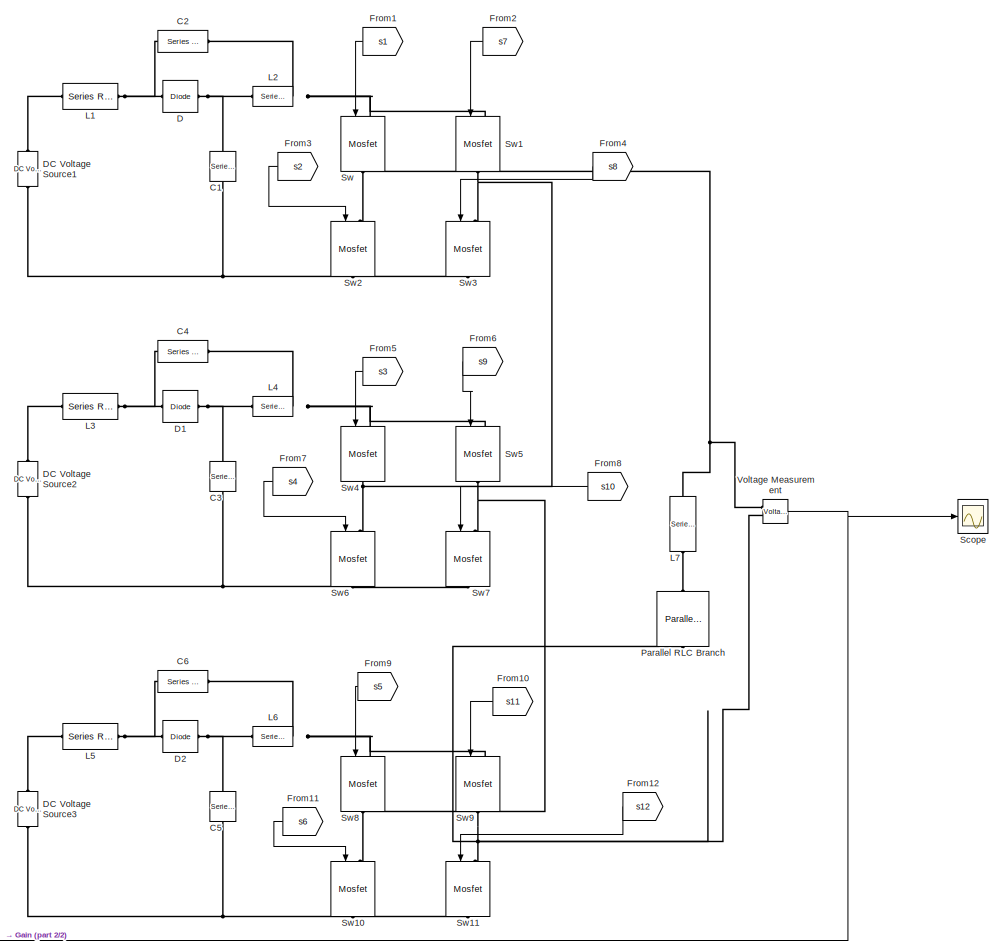
[diagram: root canvas - part 1/2, right side, full height]
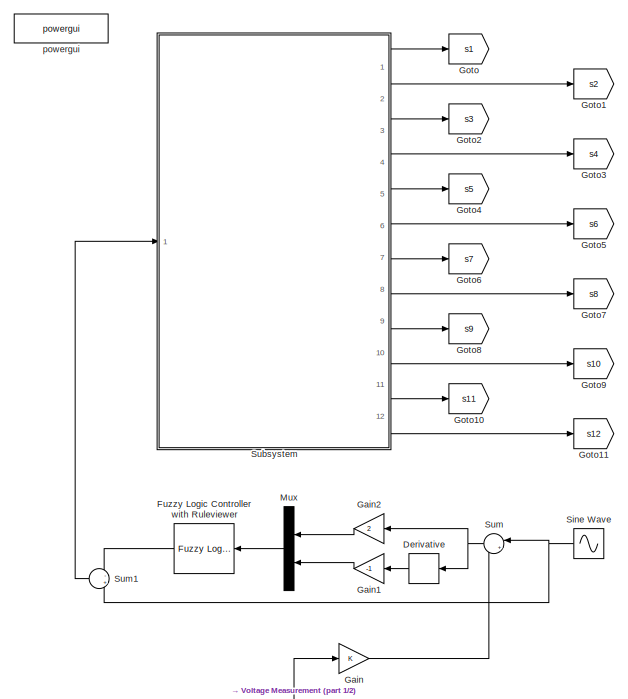
[diagram: root canvas - part 2/2, middle left region]
MODEL slx_8dec98ebf4b0
KIND model
CONFIG AbsTol = auto
CONFIG EnableMultiTasking = on
CONFIG FixedStep = auto
CONFIG MaxStep = 5e-6
CONFIG MinStep = auto
CONFIG RelTol = 1e-3
CONFIG SampleTimeConstraint = Unconstrained
CONFIG Solver = ode23tb
CONFIG SolverName = ode23tb
CONFIG StartTime = 0.0
CONFIG StopTime = .04
BLOCK [Reference] C1  REF=powerlib/Elements/Series RLC Branch
  Ports = [0, 0, 0, 0, 0, 1, 1]
  SourceBlock = powerlib/Elements/Series RLC Branch
  SourceProductBaseCode = PS
  SourceProductName = Simscape Power Systems
  SourceType = Series RLC Branch
BLOCK [Reference] C2  REF=powerlib/Elements/Series RLC Branch
  Ports = [0, 0, 0, 0, 0, 1, 1]
  SourceBlock = powerlib/Elements/Series RLC Branch
  SourceProductBaseCode = PS
  SourceProductName = Simscape Power Systems
  SourceType = Series RLC Branch
BLOCK [Reference] C3  REF=powerlib/Elements/Series RLC Branch
  Ports = [0, 0, 0, 0, 0, 1, 1]
  SourceBlock = powerlib/Elements/Series RLC Branch
  SourceProductBaseCode = PS
  SourceProductName = Simscape Power Systems
  SourceType = Series RLC Branch
BLOCK [Reference] C4  REF=powerlib/Elements/Series RLC Branch
  Ports = [0, 0, 0, 0, 0, 1, 1]
  SourceBlock = powerlib/Elements/Series RLC Branch
  SourceProductBaseCode = PS
  SourceProductName = Simscape Power Systems
  SourceType = Series RLC Branch
BLOCK [Reference] C5  REF=powerlib/Elements/Series RLC Branch
  Ports = [0, 0, 0, 0, 0, 1, 1]
  SourceBlock = powerlib/Elements/Series RLC Branch
  SourceProductBaseCode = PS
  SourceProductName = Simscape Power Systems
  SourceType = Series RLC Branch
BLOCK [Reference] C6  REF=powerlib/Elements/Series RLC Branch
  Ports = [0, 0, 0, 0, 0, 1, 1]
  SourceBlock = powerlib/Elements/Series RLC Branch
  SourceProductBaseCode = PS
  SourceProductName = Simscape Power Systems
  SourceType = Series RLC Branch
BLOCK [Reference] D  REF=powerlib/Power
Electronics/Diode
  Ports = [0, 0, 0, 0, 0, 1, 1]
  SourceBlock = powerlib/Power\nElectronics/Diode
  SourceProductBaseCode = PS
  SourceProductName = Simscape Power Systems
  SourceType = Diode
BLOCK [Reference] D1  REF=powerlib/Power
Electronics/Diode
  Ports = [0, 0, 0, 0, 0, 1, 1]
  SourceBlock = powerlib/Power\nElectronics/Diode
  SourceProductBaseCode = PS
  SourceProductName = Simscape Power Systems
  SourceType = Diode
BLOCK [Reference] D2  REF=powerlib/Power
Electronics/Diode
  Ports = [0, 0, 0, 0, 0, 1, 1]
  SourceBlock = powerlib/Power\nElectronics/Diode
  SourceProductBaseCode = PS
  SourceProductName = Simscape Power Systems
  SourceType = Diode
BLOCK [Reference] DC Voltage Source1  REF=powerlib/Electrical
Sources/DC Voltage Source
  Ports = [0, 0, 0, 0, 0, 1, 1]
  SourceBlock = powerlib/Electrical\nSources/DC Voltage Source
  SourceProductBaseCode = PS
  SourceProductName = Simscape Power Systems
  SourceType = DC Voltage Source
BLOCK [Reference] DC Voltage Source2  REF=powerlib/Electrical
Sources/DC Voltage Source
  Ports = [0, 0, 0, 0, 0, 1, 1]
  SourceBlock = powerlib/Electrical\nSources/DC Voltage Source
  SourceProductBaseCode = PS
  SourceProductName = Simscape Power Systems
  SourceType = DC Voltage Source
BLOCK [Reference] DC Voltage Source3  REF=powerlib/Electrical
Sources/DC Voltage Source
  Ports = [0, 0, 0, 0, 0, 1, 1]
  SourceBlock = powerlib/Electrical\nSources/DC Voltage Source
  SourceProductBaseCode = PS
  SourceProductName = Simscape Power Systems
  SourceType = DC Voltage Source
BLOCK [Derivative] Derivative
BLOCK [From] From1
  GotoTag = s1
BLOCK [From] From10
  GotoTag = s11
BLOCK [From] From11
  GotoTag = s6
BLOCK [From] From12
  GotoTag = s12
BLOCK [From] From2
  GotoTag = s7
BLOCK [From] From3
  GotoTag = s2
BLOCK [From] From4
  GotoTag = s8
BLOCK [From] From5
  GotoTag = s3
BLOCK [From] From6
  GotoTag = s9
BLOCK [From] From7
  GotoTag = s4
BLOCK [From] From8
  GotoTag = s10
BLOCK [From] From9
  GotoTag = s5
BLOCK [Reference] Fuzzy Logic Controller with Ruleviewer  REF=fuzblock/Fuzzy Logic   (lib defined in mdl_858b3b3e7478)
Controller 
with Ruleviewer
  Ports = [1, 1]
  SourceBlock = fuzblock/Fuzzy Logic \nController \nwith Ruleviewer
  SourceProductBaseCode = FL
  SourceProductName = Fuzzy Logic Toolbox
  SourceType = FIS
BLOCK [Gain] Gain
  OutDataTypeStr = Inherit: Inherit via internal rule
  ParamDataTypeStr = Inherit: Inherit via internal rule
  SaturateOnIntegerOverflow = off
BLOCK [Gain] Gain1
  Gain = -1
  OutDataTypeStr = Inherit: Inherit via internal rule
  ParamDataTypeStr = Inherit: Inherit via internal rule
  SaturateOnIntegerOverflow = off
BLOCK [Gain] Gain2
  Gain = 2
  OutDataTypeStr = Inherit: Inherit via internal rule
  ParamDataTypeStr = Inherit: Inherit via internal rule
  SaturateOnIntegerOverflow = off
BLOCK [Goto] Goto
  GotoTag = s1
BLOCK [Goto] Goto1
  GotoTag = s2
BLOCK [Goto] Goto10
  GotoTag = s11
BLOCK [Goto] Goto11
  GotoTag = s12
BLOCK [Goto] Goto2
  GotoTag = s3
BLOCK [Goto] Goto3
  GotoTag = s4
BLOCK [Goto] Goto4
  GotoTag = s5
BLOCK [Goto] Goto5
  GotoTag = s6
BLOCK [Goto] Goto6
  GotoTag = s7
BLOCK [Goto] Goto7
  GotoTag = s8
BLOCK [Goto] Goto8
  GotoTag = s9
BLOCK [Goto] Goto9
  GotoTag = s10
BLOCK [Reference] L1  REF=powerlib/Elements/Series RLC Branch
  Ports = [0, 0, 0, 0, 0, 1, 1]
  SourceBlock = powerlib/Elements/Series RLC Branch
  SourceProductBaseCode = PS
  SourceProductName = Simscape Power Systems
  SourceType = Series RLC Branch
BLOCK [Reference] L2  REF=powerlib/Elements/Series RLC Branch
  Ports = [0, 0, 0, 0, 0, 1, 1]
  SourceBlock = powerlib/Elements/Series RLC Branch
  SourceProductBaseCode = PS
  SourceProductName = Simscape Power Systems
  SourceType = Series RLC Branch
BLOCK [Reference] L3  REF=powerlib/Elements/Series RLC Branch
  Ports = [0, 0, 0, 0, 0, 1, 1]
  SourceBlock = powerlib/Elements/Series RLC Branch
  SourceProductBaseCode = PS
  SourceProductName = Simscape Power Systems
  SourceType = Series RLC Branch
BLOCK [Reference] L4  REF=powerlib/Elements/Series RLC Branch
  Ports = [0, 0, 0, 0, 0, 1, 1]
  SourceBlock = powerlib/Elements/Series RLC Branch
  SourceProductBaseCode = PS
  SourceProductName = Simscape Power Systems
  SourceType = Series RLC Branch
BLOCK [Reference] L5  REF=powerlib/Elements/Series RLC Branch
  Ports = [0, 0, 0, 0, 0, 1, 1]
  SourceBlock = powerlib/Elements/Series RLC Branch
  SourceProductBaseCode = PS
  SourceProductName = Simscape Power Systems
  SourceType = Series RLC Branch
BLOCK [Reference] L6  REF=powerlib/Elements/Series RLC Branch
  Ports = [0, 0, 0, 0, 0, 1, 1]
  SourceBlock = powerlib/Elements/Series RLC Branch
  SourceProductBaseCode = PS
  SourceProductName = Simscape Power Systems
  SourceType = Series RLC Branch
BLOCK [Reference] L7  REF=powerlib/Elements/Series RLC Branch
  Ports = [0, 0, 0, 0, 0, 1, 1]
  SourceBlock = powerlib/Elements/Series RLC Branch
  SourceProductBaseCode = PS
  SourceProductName = Simscape Power Systems
  SourceType = Series RLC Branch
BLOCK [Mux] Mux
  DisplayOption = bar
  Inputs = 2
  Ports = [2, 1]
BLOCK [Reference] Parallel RLC Branch  REF=powerlib/Elements/Parallel RLC Branch
  AttributesFormatString = \n
  Ports = [0, 0, 0, 0, 0, 1, 1]
  SourceBlock = powerlib/Elements/Parallel RLC Branch
  SourceProductBaseCode = PS
  SourceProductName = Simscape Power Systems
  SourceType = Parallel RLC Branch
BLOCK [Scope] Scope
  NumInputPorts = 1
  Ports = [1]
  ScopeSpecificationString = Simulink.scopes.TimeScopeBlockCfg('CurrentConfiguration', extmgr.ConfigurationSet(extmgr.Configuration('Core','General UI',true),extmgr.Configuration('Core','Source UI',true),extmgr.Configuration('Sources','WiredSimulink',true,'DataLoggingDecimation','1','DataLogging',true,'DataLoggingVariableName','fuzzyoutput'),extmgr.Configuration('Visuals','Time Domain',true,'SerializedDisplays',{struct('MinYL...<+1729ch>
BLOCK [Sin] Sine Wave
  Amplitude = 3
  Bias = .5
  Frequency = 2*pi*50
  Ports = [0, 1]
  SampleTime = 0
  VectorParams1D = off
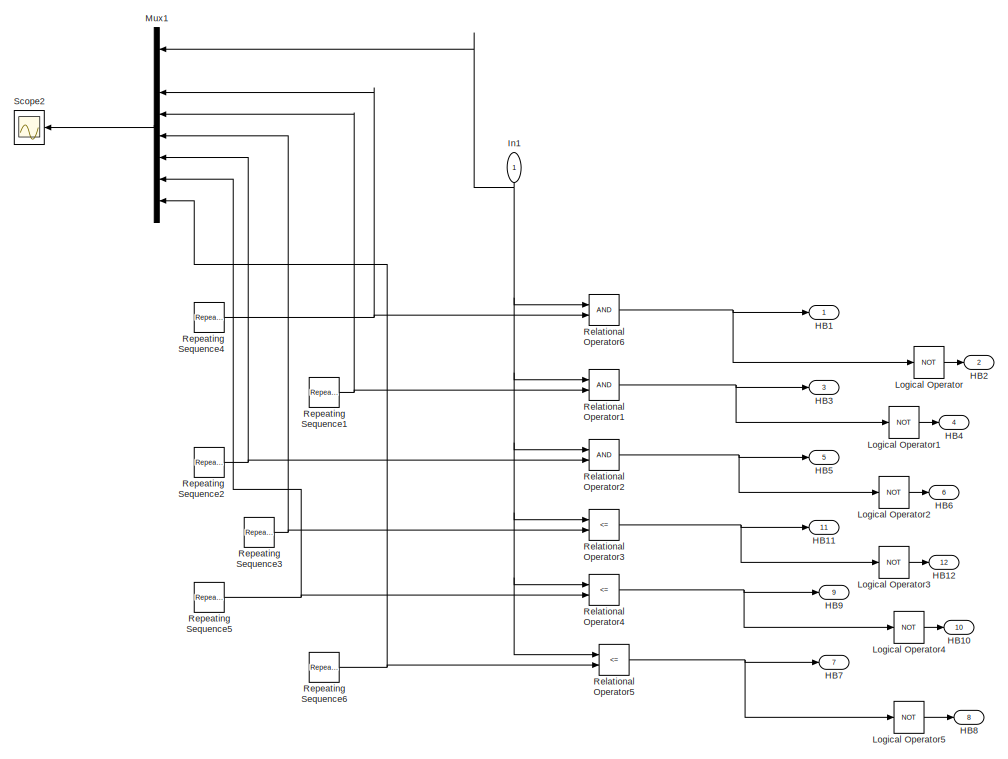
[diagram: Subsystem - part 1/2, left side, full height]
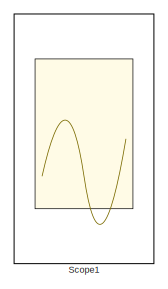
[diagram: Subsystem - part 2/2, top right region]
BLOCK [SubSystem] Subsystem
  Ports = [1, 12]
  RequestExecContextInheritance = off
  Variant = off
BLOCK [Outport] Subsystem/HB1
  IconDisplay = Port number
BLOCK [Outport] Subsystem/HB10
  IconDisplay = Port number
  Port = 10
BLOCK [Outport] Subsystem/HB11
  IconDisplay = Port number
  Port = 11
BLOCK [Outport] Subsystem/HB12
  IconDisplay = Port number
  Port = 12
BLOCK [Outport] Subsystem/HB2
  IconDisplay = Port number
  Port = 2
BLOCK [Outport] Subsystem/HB3
  IconDisplay = Port number
  Port = 3
BLOCK [Outport] Subsystem/HB4
  IconDisplay = Port number
  Port = 4
BLOCK [Outport] Subsystem/HB5
  IconDisplay = Port number
  Port = 5
BLOCK [Outport] Subsystem/HB6
  IconDisplay = Port number
  Port = 6
BLOCK [Outport] Subsystem/HB7
  IconDisplay = Port number
  Port = 7
BLOCK [Outport] Subsystem/HB8
  IconDisplay = Port number
  Port = 8
BLOCK [Outport] Subsystem/HB9
  IconDisplay = Port number
  Port = 9
BLOCK [Inport] Subsystem/In1
  IconDisplay = Port number
BLOCK [Logic] Subsystem/Logical Operator
  AllPortsSameDT = off
  Operator = NOT
  OutDataTypeStr = boolean
  Ports = [1, 1]
BLOCK [Logic] Subsystem/Logical Operator1
  AllPortsSameDT = off
  Operator = NOT
  OutDataTypeStr = boolean
  Ports = [1, 1]
BLOCK [Logic] Subsystem/Logical Operator2
  AllPortsSameDT = off
  Operator = NOT
  OutDataTypeStr = boolean
  Ports = [1, 1]
BLOCK [Logic] Subsystem/Logical Operator3
  AllPortsSameDT = off
  Operator = NOT
  OutDataTypeStr = boolean
  Ports = [1, 1]
BLOCK [Logic] Subsystem/Logical Operator4
  AllPortsSameDT = off
  Operator = NOT
  OutDataTypeStr = boolean
  Ports = [1, 1]
BLOCK [Logic] Subsystem/Logical Operator5
  AllPortsSameDT = off
  Operator = NOT
  OutDataTypeStr = boolean
  Ports = [1, 1]
BLOCK [Mux] Subsystem/Mux1
  DisplayOption = bar
  Inputs = 8
  Ports = [8, 1]
BLOCK [RelationalOperator] Subsystem/Relational Operator1
  InputSameDT = off
  OutDataTypeStr = boolean
  Ports = [2, 1]
BLOCK [RelationalOperator] Subsystem/Relational Operator2
  InputSameDT = off
  OutDataTypeStr = boolean
  Ports = [2, 1]
BLOCK [RelationalOperator] Subsystem/Relational Operator3
  InputSameDT = off
  Operator = <=
  OutDataTypeStr = boolean
  Ports = [2, 1]
BLOCK [RelationalOperator] Subsystem/Relational Operator4
  InputSameDT = off
  Operator = <=
  OutDataTypeStr = boolean
  Ports = [2, 1]
BLOCK [RelationalOperator] Subsystem/Relational Operator5
  InputSameDT = off
  Operator = <=
  OutDataTypeStr = boolean
  Ports = [2, 1]
BLOCK [RelationalOperator] Subsystem/Relational Operator6
  InputSameDT = off
  OutDataTypeStr = boolean
  Ports = [2, 1]
BLOCK [Reference] Subsystem/Repeating Sequence1  REF=simulink/Sources/Repeating
Sequence
  Ports = [0, 1]
  SourceBlock = simulink/Sources/Repeating\nSequence
  SourceProductBaseCode = SL
  SourceProductName = Simulink
  SourceType = Repeating table
BLOCK [Reference] Subsystem/Repeating Sequence2  REF=simulink/Sources/Repeating
Sequence
  Ports = [0, 1]
  SourceBlock = simulink/Sources/Repeating\nSequence
  SourceProductBaseCode = SL
  SourceProductName = Simulink
  SourceType = Repeating table
BLOCK [Reference] Subsystem/Repeating Sequence3  REF=simulink/Sources/Repeating
Sequence
  Ports = [0, 1]
  SourceBlock = simulink/Sources/Repeating\nSequence
  SourceProductBaseCode = SL
  SourceProductName = Simulink
  SourceType = Repeating table
BLOCK [Reference] Subsystem/Repeating Sequence4  REF=simulink/Sources/Repeating
Sequence
  Ports = [0, 1]
  SourceBlock = simulink/Sources/Repeating\nSequence
  SourceProductBaseCode = SL
  SourceProductName = Simulink
  SourceType = Repeating table
BLOCK [Reference] Subsystem/Repeating Sequence5  REF=simulink/Sources/Repeating
Sequence
  Ports = [0, 1]
  SourceBlock = simulink/Sources/Repeating\nSequence
  SourceProductBaseCode = SL
  SourceProductName = Simulink
  SourceType = Repeating table
BLOCK [Reference] Subsystem/Repeating Sequence6  REF=simulink/Sources/Repeating
Sequence
  Ports = [0, 1]
  SourceBlock = simulink/Sources/Repeating\nSequence
  SourceProductBaseCode = SL
  SourceProductName = Simulink
  SourceType = Repeating table
BLOCK [Scope] Subsystem/Scope1
  NumInputPorts = 7
  Ports = [7]
  ScopeSpecificationString = Simulink.scopes.TimeScopeBlockCfg('CurrentConfiguration', extmgr.ConfigurationSet(extmgr.Configuration('Core','General UI',true,'DisplayFullSourceName',true),extmgr.Configuration('Core','Source UI',true),extmgr.Configuration('Sources','WiredSimulink',true,'DataLoggingLimitDataPoints',true,'DataLoggingSaveFormat','Array','DataLoggingDecimation','1','DataLoggingDecimateData',true),extmgr.Configurati...<+1802ch>
BLOCK [Scope] Subsystem/Scope2
  NumInputPorts = 1
  Ports = [1]
  ScopeSpecificationString = Simulink.scopes.TimeScopeBlockCfg('CurrentConfiguration', extmgr.ConfigurationSet(extmgr.Configuration('Core','General UI',true),extmgr.Configuration('Core','Source UI',true),extmgr.Configuration('Sources','WiredSimulink',true,'DataLoggingLimitDataPoints',true,'DataLoggingSaveFormat','Array','DataLoggingDecimation','1','DataLoggingDecimateData',true,'DataLoggingVariableName','ScopeData1'),extmgr.C...<+1885ch>
BLOCK [Sum] Sum
  IconShape = round
  InputSameDT = off
  Inputs = |+-
  OutDataTypeStr = Inherit: Inherit via internal rule
  Ports = [2, 1]
  SaturateOnIntegerOverflow = off
BLOCK [Sum] Sum1
  IconShape = round
  InputSameDT = off
  Inputs = -+
  OutDataTypeStr = Inherit: Inherit via internal rule
  Ports = [2, 1]
  SaturateOnIntegerOverflow = off
BLOCK [Reference] Sw  REF=powerlib/Power
Electronics/Mosfet
  Ports = [1, 0, 0, 0, 0, 1, 1]
  SourceBlock = powerlib/Power\nElectronics/Mosfet
  SourceProductBaseCode = PS
  SourceProductName = Simscape Power Systems
  SourceType = Mosfet
BLOCK [Reference] Sw1  REF=powerlib/Power
Electronics/Mosfet
  Ports = [1, 0, 0, 0, 0, 1, 1]
  SourceBlock = powerlib/Power\nElectronics/Mosfet
  SourceProductBaseCode = PS
  SourceProductName = Simscape Power Systems
  SourceType = Mosfet
BLOCK [Reference] Sw10  REF=powerlib/Power
Electronics/Mosfet
  Ports = [1, 0, 0, 0, 0, 1, 1]
  SourceBlock = powerlib/Power\nElectronics/Mosfet
  SourceProductBaseCode = PS
  SourceProductName = Simscape Power Systems
  SourceType = Mosfet
BLOCK [Reference] Sw11  REF=powerlib/Power
Electronics/Mosfet
  Ports = [1, 0, 0, 0, 0, 1, 1]
  SourceBlock = powerlib/Power\nElectronics/Mosfet
  SourceProductBaseCode = PS
  SourceProductName = Simscape Power Systems
  SourceType = Mosfet
BLOCK [Reference] Sw2  REF=powerlib/Power
Electronics/Mosfet
  Ports = [1, 0, 0, 0, 0, 1, 1]
  SourceBlock = powerlib/Power\nElectronics/Mosfet
  SourceProductBaseCode = PS
  SourceProductName = Simscape Power Systems
  SourceType = Mosfet
BLOCK [Reference] Sw3  REF=powerlib/Power
Electronics/Mosfet
  Ports = [1, 0, 0, 0, 0, 1, 1]
  SourceBlock = powerlib/Power\nElectronics/Mosfet
  SourceProductBaseCode = PS
  SourceProductName = Simscape Power Systems
  SourceType = Mosfet
BLOCK [Reference] Sw4  REF=powerlib/Power
Electronics/Mosfet
  Ports = [1, 0, 0, 0, 0, 1, 1]
  SourceBlock = powerlib/Power\nElectronics/Mosfet
  SourceProductBaseCode = PS
  SourceProductName = Simscape Power Systems
  SourceType = Mosfet
BLOCK [Reference] Sw5  REF=powerlib/Power
Electronics/Mosfet
  Ports = [1, 0, 0, 0, 0, 1, 1]
  SourceBlock = powerlib/Power\nElectronics/Mosfet
  SourceProductBaseCode = PS
  SourceProductName = Simscape Power Systems
  SourceType = Mosfet
BLOCK [Reference] Sw6  REF=powerlib/Power
Electronics/Mosfet
  Ports = [1, 0, 0, 0, 0, 1, 1]
  SourceBlock = powerlib/Power\nElectronics/Mosfet
  SourceProductBaseCode = PS
  SourceProductName = Simscape Power Systems
  SourceType = Mosfet
BLOCK [Reference] Sw7  REF=powerlib/Power
Electronics/Mosfet
  Ports = [1, 0, 0, 0, 0, 1, 1]
  SourceBlock = powerlib/Power\nElectronics/Mosfet
  SourceProductBaseCode = PS
  SourceProductName = Simscape Power Systems
  SourceType = Mosfet
BLOCK [Reference] Sw8  REF=powerlib/Power
Electronics/Mosfet
  Ports = [1, 0, 0, 0, 0, 1, 1]
  SourceBlock = powerlib/Power\nElectronics/Mosfet
  SourceProductBaseCode = PS
  SourceProductName = Simscape Power Systems
  SourceType = Mosfet
BLOCK [Reference] Sw9  REF=powerlib/Power
Electronics/Mosfet
  Ports = [1, 0, 0, 0, 0, 1, 1]
  SourceBlock = powerlib/Power\nElectronics/Mosfet
  SourceProductBaseCode = PS
  SourceProductName = Simscape Power Systems
  SourceType = Mosfet
BLOCK [Reference] Voltage Measurement  REF=powerlib/Measurements/Voltage Measurement
  Ports = [0, 1, 0, 0, 0, 2]
  SourceBlock = powerlib/Measurements/Voltage Measurement
  SourceProductBaseCode = PS
  SourceProductName = Simscape Power Systems
  SourceType = Voltage Measurement
  UserDataPersistent = on
BLOCK [Reference] powergui  REF=powerlib/powergui
  Ports = []
  Priority = 1
  SourceBlock = powerlib/powergui
  SourceProductBaseCode = PS
  SourceProductName = Simscape Power Systems
  SourceType = PSB option menu block
LINE Derivative:1 -> Gain1:1
LINE From10:1 -> Sw9:1
LINE From11:1 -> Sw10:1
LINE From12:1 -> Sw11:1
LINE From1:1 -> Sw:1
LINE From2:1 -> Sw1:1
LINE From3:1 -> Sw2:1
LINE From4:1 -> Sw3:1
LINE From5:1 -> Sw4:1
LINE From6:1 -> Sw5:1
LINE From7:1 -> Sw6:1
LINE From8:1 -> Sw7:1
LINE From9:1 -> Sw8:1
LINE Fuzzy Logic Controller with Ruleviewer:1 -> Sum1:1
LINE Gain1:1 -> Mux:2
LINE Gain2:1 -> Mux:1
LINE Gain:1 -> Sum:2
LINE Mux:1 -> Fuzzy Logic Controller with Ruleviewer:1
NET Sine Wave:1 -> Sum1:2, Sum:1
NET Subsystem/In1:1 -> Subsystem/Mux1:1, Subsystem/Relational Operator1:1, Subsystem/Relational Operator2:1, Subsystem/Relational Operator3:1, Subsystem/Relational Operator4:1, Subsystem/Relational Operator5:1, Subsystem/Relational Operator6:1
LINE Subsystem/Logical Operator1:1 -> Subsystem/HB4:1
LINE Subsystem/Logical Operator2:1 -> Subsystem/HB6:1
LINE Subsystem/Logical Operator3:1 -> Subsystem/HB12:1
LINE Subsystem/Logical Operator4:1 -> Subsystem/HB10:1
LINE Subsystem/Logical Operator5:1 -> Subsystem/HB8:1
LINE Subsystem/Logical Operator:1 -> Subsystem/HB2:1
LINE Subsystem/Mux1:1 -> Subsystem/Scope2:1
NET Subsystem/Relational Operator1:1 -> Subsystem/HB3:1, Subsystem/Logical Operator1:1
NET Subsystem/Relational Operator2:1 -> Subsystem/HB5:1, Subsystem/Logical Operator2:1
NET Subsystem/Relational Operator3:1 -> Subsystem/HB11:1, Subsystem/Logical Operator3:1
NET Subsystem/Relational Operator4:1 -> Subsystem/HB9:1, Subsystem/Logical Operator4:1
NET Subsystem/Relational Operator5:1 -> Subsystem/HB7:1, Subsystem/Logical Operator5:1
NET Subsystem/Relational Operator6:1 -> Subsystem/HB1:1, Subsystem/Logical Operator:1
NET Subsystem/Repeating Sequence1:1 -> Subsystem/Mux1:4, Subsystem/Relational Operator1:2
NET Subsystem/Repeating Sequence2:1 -> Subsystem/Mux1:6, Subsystem/Relational Operator2:2
NET Subsystem/Repeating Sequence3:1 -> Subsystem/Mux1:5, Subsystem/Relational Operator3:2
NET Subsystem/Repeating Sequence4:1 -> Subsystem/Mux1:3, Subsystem/Relational Operator6:2
NET Subsystem/Repeating Sequence5:1 -> Subsystem/Mux1:7, Subsystem/Relational Operator4:2
NET Subsystem/Repeating Sequence6:1 -> Subsystem/Mux1:8, Subsystem/Relational Operator5:2
LINE Subsystem:1 -> Goto:1
LINE Subsystem:10 -> Goto9:1
LINE Subsystem:11 -> Goto10:1
LINE Subsystem:12 -> Goto11:1
LINE Subsystem:2 -> Goto1:1
LINE Subsystem:3 -> Goto2:1
LINE Subsystem:4 -> Goto3:1
LINE Subsystem:5 -> Goto4:1
LINE Subsystem:6 -> Goto5:1
LINE Subsystem:7 -> Goto6:1
LINE Subsystem:8 -> Goto7:1
LINE Subsystem:9 -> Goto8:1
LINE Sum1:1 -> Subsystem:1
NET Sum:1 -> Derivative:1, Gain2:1
NET Voltage Measurement:1 -> Gain:1, Scope:1
PNET net1: C1:LConn1 -- D:RConn1 -- L2:RConn1
PNET net2: C1:RConn1 -- DC Voltage Source1:LConn1 -- Sw2:RConn1 -- Sw3:RConn1
PNET net3: C2:LConn1 -- L2:LConn1 -- Sw1:LConn1 -- Sw:LConn1
PNET net4: C2:RConn1 -- D:LConn1 -- L1:RConn1
PNET net5: C3:LConn1 -- D1:RConn1 -- L4:RConn1
PNET net6: C3:RConn1 -- DC Voltage Source2:LConn1 -- Sw6:RConn1 -- Sw7:RConn1
PNET net7: C4:LConn1 -- L4:LConn1 -- Sw4:LConn1 -- Sw5:LConn1
PNET net8: C4:RConn1 -- D1:LConn1 -- L3:RConn1
PNET net9: C5:LConn1 -- D2:RConn1 -- L6:RConn1
PNET net10: C5:RConn1 -- DC Voltage Source3:LConn1 -- Sw10:RConn1 -- Sw11:RConn1
PNET net11: C6:LConn1 -- L6:LConn1 -- Sw8:LConn1 -- Sw9:LConn1
PNET net12: C6:RConn1 -- D2:LConn1 -- L5:RConn1
PLINE DC Voltage Source1:RConn1 -- L1:LConn1
PLINE DC Voltage Source2:RConn1 -- L3:LConn1
PLINE DC Voltage Source3:RConn1 -- L5:LConn1
PNET net13: L7:LConn1 -- Sw2:LConn1 -- Sw:RConn1 -- Voltage Measurement:LConn1
PLINE L7:RConn1 -- Parallel RLC Branch:LConn1
PNET net14: Parallel RLC Branch:RConn1 -- Sw11:LConn1 -- Sw9:RConn1 -- Voltage Measurement:LConn2
PNET net15: Sw10:LConn1 -- Sw5:RConn1 -- Sw7:LConn1 -- Sw8:RConn1
PNET net16: Sw1:RConn1 -- Sw3:LConn1 -- Sw4:RConn1 -- Sw6:LConn1
note: NET lines group one-source signal fan-out (src -> all destinations, sorted); 1:1 wires keep LINE; PNET lines group multi-terminal physical nets as a canonical sorted terminal list (undirected conserving connections); 2-terminal nets keep the pairwise PLINE form
